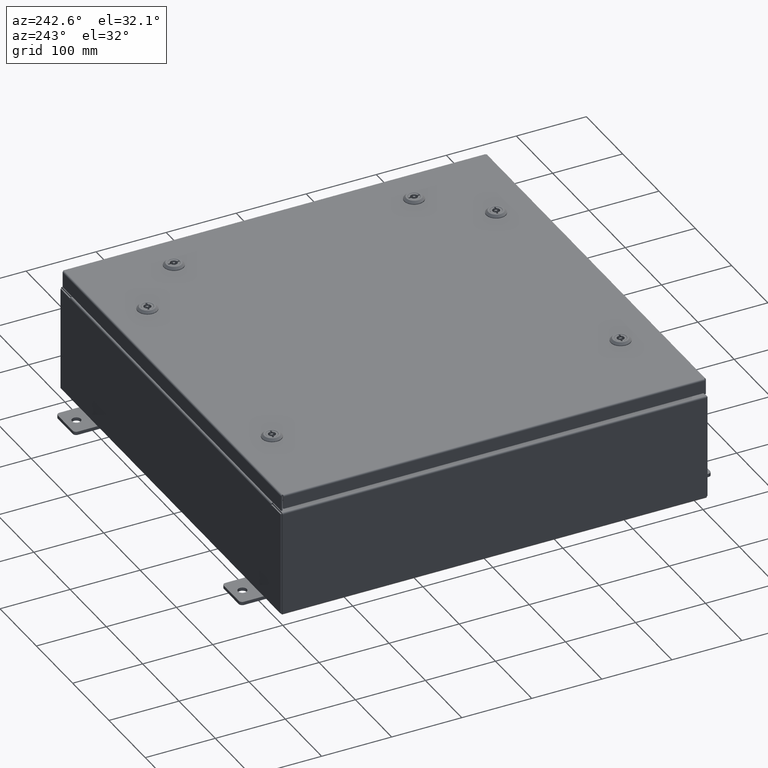
[diagram: clean part render]
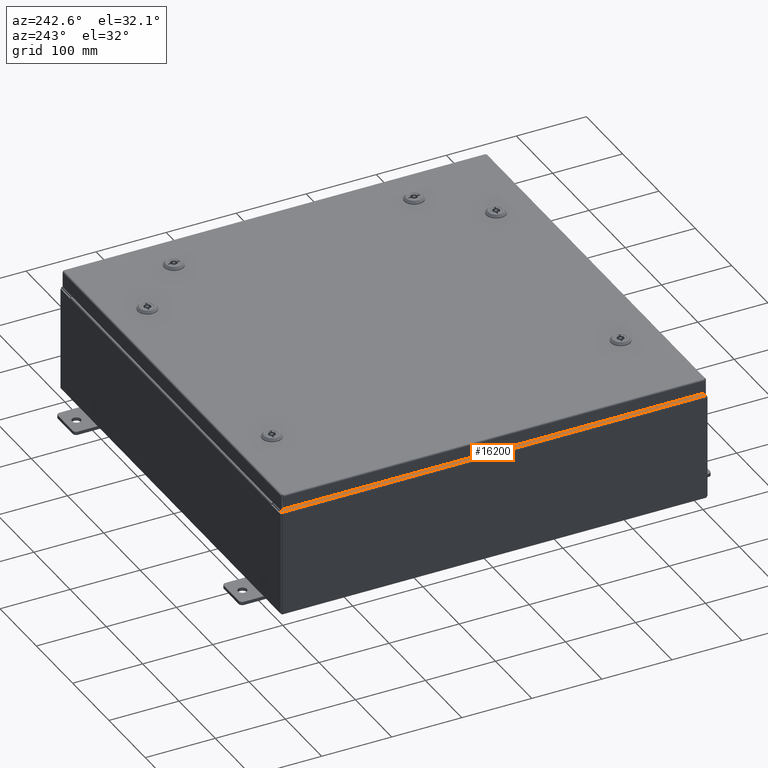
[diagram: same view with one face highlighted and labeled with its STEP entity id]
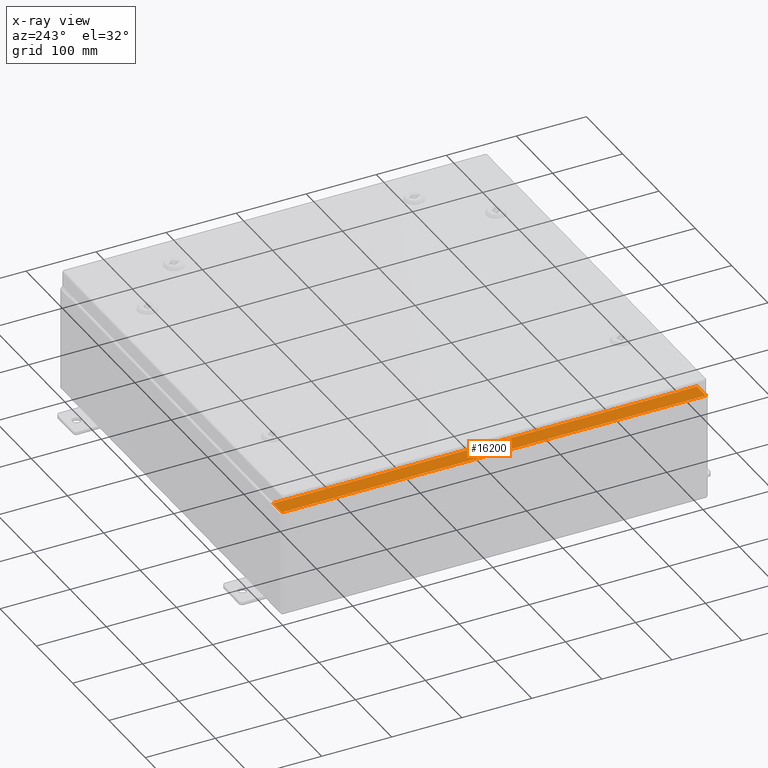
[diagram: x-ray of the same camera — body ghosted, the highlighted face saturated]
A machine part, auxiliary view. The second image highlights one B-rep face of the part: STEP entity #16200.
The next image is the same camera in x-ray: the body ghosted, the highlighted face saturated — about 0% of this face is hidden behind the body in this view.
In plain terms, the highlighted planar face has unit normal (0, 0, -1).
Its self-contained STEP definition (entity closure, byte-faithful):
#19 = LINE ( 'NONE', #41168, #27543 ) ;
#148 = ORIENTED_EDGE ( 'NONE', *, *, #4188, .F. ) ;
#321 = EDGE_CURVE ( 'NONE', #1694, #6105, #62051, .T. ) ;
#741 = CARTESIAN_POINT ( 'NONE',  ( -11.00005000000002100, -10.84375000000000200, 5.925300000000007100 ) ) ;
#1694 = VERTEX_POINT ( 'NONE', #22163 ) ;
#2073 = CARTESIAN_POINT ( 'NONE',  ( -10.94970000000002300, -10.88110000000000200, 5.925300000000007100 ) ) ;
#2125 = VECTOR ( 'NONE', #38122, 39.37007874015748100 ) ;
#2228 = LINE ( 'NONE', #23128, #39541 ) ;
#2359 = CARTESIAN_POINT ( 'NONE',  ( -11.00005000000002100, -10.88110000000000000, 5.925300000000007100 ) ) ;
#2520 = FACE_OUTER_BOUND ( 'NONE', #42346, .T. ) ;
#4188 = EDGE_CURVE ( 'NONE', #6105, #51540, #60166, .T. ) ;
#5035 = CARTESIAN_POINT ( 'NONE',  ( -11.00005000000002100, 10.84374999999999800, 5.925300000000007100 ) ) ;
#5075 = VERTEX_POINT ( 'NONE', #56736 ) ;
#5344 = ORIENTED_EDGE ( 'NONE', *, *, #41134, .T. ) ;
#6105 = VERTEX_POINT ( 'NONE', #18945 ) ;
#6286 = ORIENTED_EDGE ( 'NONE', *, *, #60990, .F. ) ;
#6494 = VERTEX_POINT ( 'NONE', #7892 ) ;
#7892 = CARTESIAN_POINT ( 'NONE',  ( -11.91230000000002500, 11.92529999999999800, 5.925299999999999100 ) ) ;
#10677 = CARTESIAN_POINT ( 'NONE',  ( -11.00005000000002100, -10.88110000000000000, 5.925300000000007100 ) ) ;
#11702 = EDGE_CURVE ( 'NONE', #5075, #52330, #23564, .T. ) ;
#12354 = DIRECTION ( 'NONE',  ( 1.000000000000000000, 0.0000000000000000000, 0.0000000000000000000 ) ) ;
#12410 = DIRECTION ( 'NONE',  ( -7.840482146637899600E-015, -0.0000000000000000000, 1.000000000000000000 ) ) ;
#12418 = CARTESIAN_POINT ( 'NONE',  ( -11.00005000000002100, 10.86242499999999800, 5.925300000000007100 ) ) ;
#15654 = ORIENTED_EDGE ( 'NONE', *, *, #321, .F. ) ;
#15791 = LINE ( 'NONE', #61118, #28734 ) ;
#16200 = ADVANCED_FACE ( 'NONE', ( #2520 ), #32898, .F. ) ;
#17857 = CARTESIAN_POINT ( 'NONE',  ( -10.94970000000002300, 10.88110000000000000, 5.925300000000007100 ) ) ;
#18504 = CARTESIAN_POINT ( 'NONE',  ( -10.96270000000002300, -10.84375000000000200, 5.925300000000007100 ) ) ;
#18945 = CARTESIAN_POINT ( 'NONE',  ( -10.96270000000002300, -10.84375000000000200, 5.925300000000007100 ) ) ;
#19130 = EDGE_CURVE ( 'NONE', #28862, #52268, #27050, .T. ) ;
#19144 = ORIENTED_EDGE ( 'NONE', *, *, #31263, .F. ) ;
#20159 = EDGE_CURVE ( 'NONE', #52330, #26947, #52054, .T. ) ;
#21487 = ORIENTED_EDGE ( 'NONE', *, *, #21492, .F. ) ;
#21492 = EDGE_CURVE ( 'NONE', #5075, #6494, #15791, .T. ) ;
#22163 = CARTESIAN_POINT ( 'NONE',  ( -10.96270000000002300, 10.84374999999999800, 5.925300000000007100 ) ) ;
#22991 = VERTEX_POINT ( 'NONE', #10677 ) ;
#23128 = CARTESIAN_POINT ( 'NONE',  ( -4.671802251945618300E-014, 11.92529999999999800, 5.925300000000093300 ) ) ;
#23564 = LINE ( 'NONE', #58890, #24069 ) ;
#24069 = VECTOR ( 'NONE', #58833, 39.37007874015748100 ) ;
#24746 = DIRECTION ( 'NONE',  ( -7.840482146637899600E-015, -0.0000000000000000000, 1.000000000000000000 ) ) ;
#25396 = CARTESIAN_POINT ( 'NONE',  ( -10.94970000000002300, 10.88110000000000000, 5.925300000000007100 ) ) ;
#26947 = VERTEX_POINT ( 'NONE', #2073 ) ;
#27050 = LINE ( 'NONE', #44368, #57045 ) ;
#27543 = VECTOR ( 'NONE', #41316, 39.37007874015748100 ) ;
#28180 = LINE ( 'NONE', #2359, #53653 ) ;
#28734 = VECTOR ( 'NONE', #60985, 39.37007874015748100 ) ;
#28862 = VERTEX_POINT ( 'NONE', #17857 ) ;
#29572 = AXIS2_PLACEMENT_3D ( 'NONE', #34645, #35069, #35079 ) ;
#30274 = DIRECTION ( 'NONE',  ( -1.000000000000000000, -4.340572780400098900E-014, 0.0000000000000000000 ) ) ;
#30324 = CARTESIAN_POINT ( 'NONE',  ( -10.94970000000002300, 11.92529999999999800, 5.925300000000007100 ) ) ;
#31263 = EDGE_CURVE ( 'NONE', #48785, #1694, #19, .T. ) ;
#31555 = DIRECTION ( 'NONE',  ( 1.000000000000000000, 0.0000000000000000000, 0.0000000000000000000 ) ) ;
#32898 = PLANE ( 'NONE',  #29572 ) ;
#34645 = CARTESIAN_POINT ( 'NONE',  ( -4.671802251945618300E-014, 0.0000000000000000000, 5.925300000000093300 ) ) ;
#34841 = EDGE_CURVE ( 'NONE', #52776, #48785, #60118, .T. ) ;
#35069 = DIRECTION ( 'NONE',  ( 7.840482146637899600E-015, 0.0000000000000000000, -1.000000000000000000 ) ) ;
#35079 = DIRECTION ( 'NONE',  ( -1.000000000000000000, 0.0000000000000000000, -7.840482146637899600E-015 ) ) ;
#36449 = VECTOR ( 'NONE', #30274, 39.37007874015748100 ) ;
#38076 = DIRECTION ( 'NONE',  ( -3.120540565805877600E-031, 1.000000000000000000, -2.446654259406031200E-045 ) ) ;
#38122 = DIRECTION ( 'NONE',  ( -3.120540565805877600E-031, 1.000000000000000000, -2.446654259406031200E-045 ) ) ;
#38665 = DIRECTION ( 'NONE',  ( -1.000000000000000000, 0.0000000000000000000, 0.0000000000000000000 ) ) ;
#38671 = CARTESIAN_POINT ( 'NONE',  ( -10.94970000000002300, 0.0000000000000000000, 5.925300000000007100 ) ) ;
#39541 = VECTOR ( 'NONE', #51726, 39.37007874015748100 ) ;
#40276 = CARTESIAN_POINT ( 'NONE',  ( -10.94970000000002300, -11.92530000000000000, 5.925300000000007100 ) ) ;
#41051 = EDGE_CURVE ( 'NONE', #22991, #26947, #28180, .T. ) ;
#41134 = EDGE_CURVE ( 'NONE', #52268, #6494, #2228, .T. ) ;
#41168 = CARTESIAN_POINT ( 'NONE',  ( -11.00005000000002100, 10.84374999999999800, 5.925300000000007100 ) ) ;
#41316 = DIRECTION ( 'NONE',  ( 1.000000000000000000, 0.0000000000000000000, 0.0000000000000000000 ) ) ;
#42346 = EDGE_LOOP ( 'NONE', ( #61898, #59449, #5344, #21487, #44659, #50455, #62402, #6286, #148, #15654, #19144, #47267 ) ) ;
#44368 = CARTESIAN_POINT ( 'NONE',  ( -10.94970000000002300, 0.0000000000000000000, 5.925300000000007100 ) ) ;
#44659 = ORIENTED_EDGE ( 'NONE', *, *, #11702, .T. ) ;
#47267 = ORIENTED_EDGE ( 'NONE', *, *, #34841, .F. ) ;
#48785 = VERTEX_POINT ( 'NONE', #5035 ) ;
#48939 = CARTESIAN_POINT ( 'NONE',  ( -11.00005000000002100, 10.88109999999999800, 5.925300000000007100 ) ) ;
#50455 = ORIENTED_EDGE ( 'NONE', *, *, #20159, .T. ) ;
#51540 = VERTEX_POINT ( 'NONE', #741 ) ;
#51726 = DIRECTION ( 'NONE',  ( -1.000000000000000000, -5.131708078419879300E-032, -7.840482146637899600E-015 ) ) ;
#52054 = LINE ( 'NONE', #38671, #2125 ) ;
#52268 = VERTEX_POINT ( 'NONE', #30324 ) ;
#52330 = VERTEX_POINT ( 'NONE', #40276 ) ;
#52776 = VERTEX_POINT ( 'NONE', #48939 ) ;
#53499 = CARTESIAN_POINT ( 'NONE',  ( -11.00005000000002100, -10.86242500000000000, 5.925300000000007100 ) ) ;
#53653 = VECTOR ( 'NONE', #31555, 39.37007874015748100 ) ;
#53914 = AXIS2_PLACEMENT_3D ( 'NONE', #53499, #24746, #58416 ) ;
#55096 = CIRCLE ( 'NONE', #53914, 0.01867499999999949400 ) ;
#56159 = CARTESIAN_POINT ( 'NONE',  ( -10.96270000000002300, 10.84375000000000200, 5.925300000000007100 ) ) ;
#56436 = DIRECTION ( 'NONE',  ( -0.0000000000000000000, -1.000000000000000000, -0.0000000000000000000 ) ) ;
#56736 = CARTESIAN_POINT ( 'NONE',  ( -11.91230000000002500, -11.92530000000000000, 5.925300000000000000 ) ) ;
#57045 = VECTOR ( 'NONE', #38076, 39.37007874015748100 ) ;
#58416 = DIRECTION ( 'NONE',  ( 1.000000000000000000, 0.0000000000000000000, 0.0000000000000000000 ) ) ;
#58833 = DIRECTION ( 'NONE',  ( 1.000000000000000000, 0.0000000000000000000, 7.840482146637899600E-015 ) ) ;
#58890 = CARTESIAN_POINT ( 'NONE',  ( -4.671802251945618300E-014, -11.92530000000000000, 5.925300000000093300 ) ) ;
#59449 = ORIENTED_EDGE ( 'NONE', *, *, #19130, .T. ) ;
#60051 = VECTOR ( 'NONE', #38665, 39.37007874015748100 ) ;
#60118 = CIRCLE ( 'NONE', #61372, 0.01867499999999949400 ) ;
#60166 = LINE ( 'NONE', #18504, #60051 ) ;
#60985 = DIRECTION ( 'NONE',  ( 9.163200904511462000E-017, 1.000000000000000000, 7.184391309787836500E-031 ) ) ;
#60990 = EDGE_CURVE ( 'NONE', #51540, #22991, #55096, .T. ) ;
#61114 = EDGE_CURVE ( 'NONE', #28862, #52776, #61917, .T. ) ;
#61118 = CARTESIAN_POINT ( 'NONE',  ( -11.91230000000002300, 11.92529999999999800, 5.925300000000000000 ) ) ;
#61372 = AXIS2_PLACEMENT_3D ( 'NONE', #12418, #12410, #12354 ) ;
#61898 = ORIENTED_EDGE ( 'NONE', *, *, #61114, .F. ) ;
#61917 = LINE ( 'NONE', #25396, #36449 ) ;
#62051 = LINE ( 'NONE', #56159, #62183 ) ;
#62183 = VECTOR ( 'NONE', #56436, 39.37007874015748100 ) ;
#62402 = ORIENTED_EDGE ( 'NONE', *, *, #41051, .F. ) ;